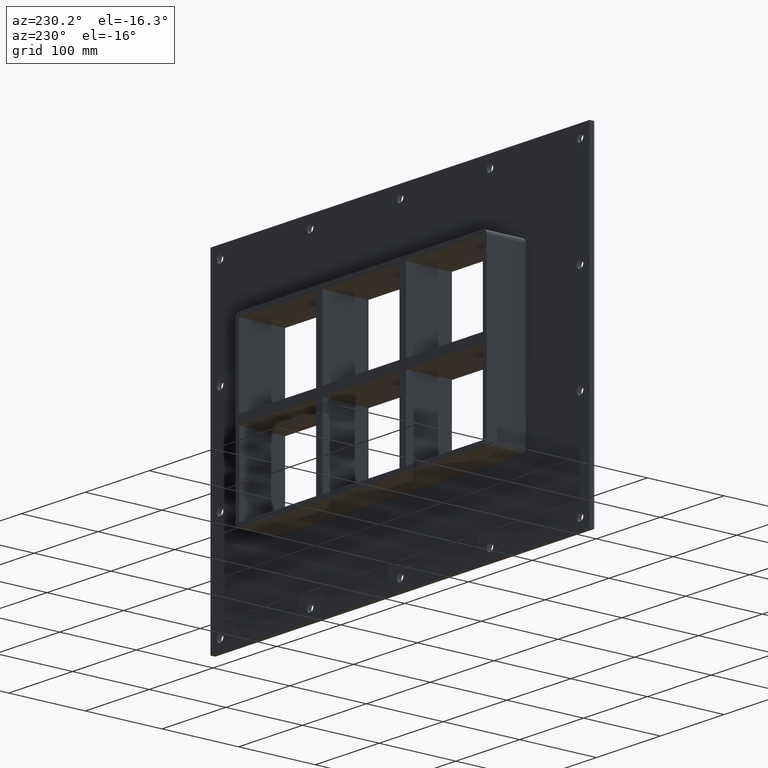
[diagram: clean part render]
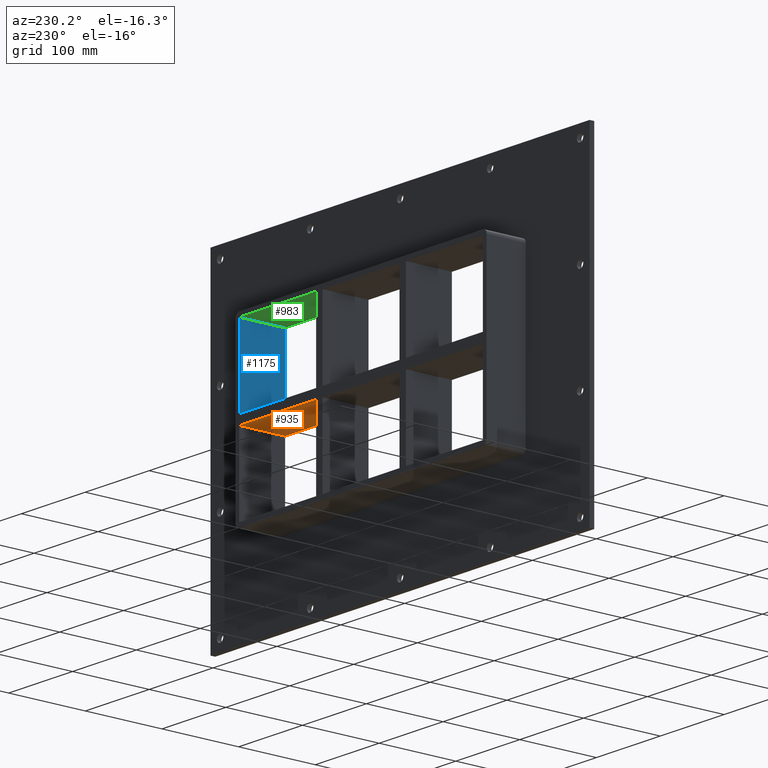
[diagram: same view with three faces highlighted in distinct colors, each labeled with its STEP entity id]
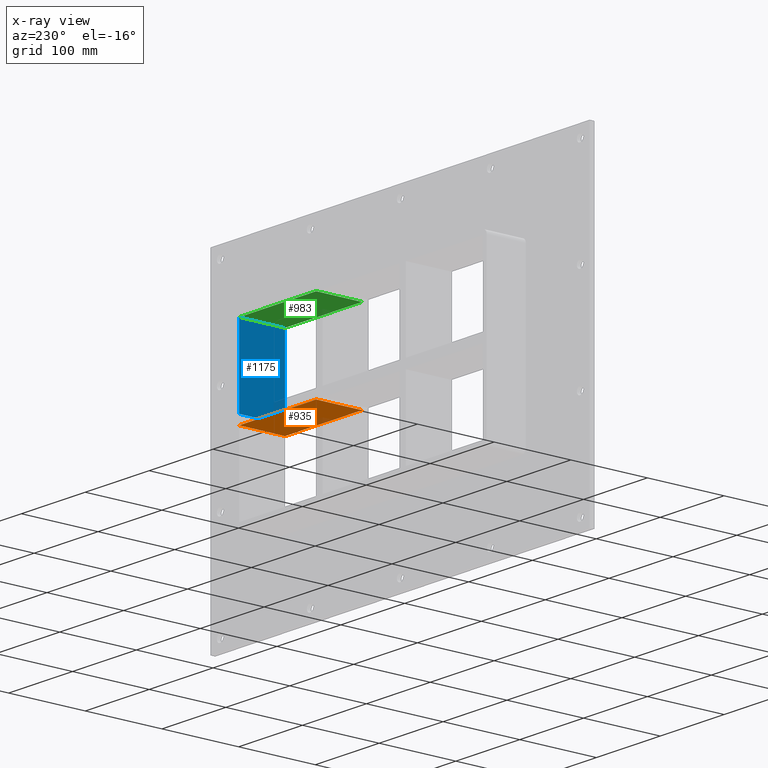
[diagram: x-ray of the same camera — body ghosted, the three highlighted faces saturated]
A machine part, auxiliary view with three faces highlighted in distinct colors.
The next image is the same camera in x-ray (body ghosted, the three faces saturated) — at least one of them is partly hidden behind the body in this view.
Their STEP definitions:

[orange] entity #935 — the highlighted planar face has unit normal (0, 0, -1).
#585=CARTESIAN_POINT('',(70.250000000003638,-3.0,-6.000000000009322));
#586=VERTEX_POINT('',#585);
#587=CARTESIAN_POINT('',(70.250000000003638,57.0,-6.000000000009322));
#588=VERTEX_POINT('',#587);
#589=CARTESIAN_POINT('',(70.250000000003638,-3.0,-6.000000000009322));
#590=DIRECTION('',(0.0,1.0,0.0));
#591=VECTOR('',#590,60.0);
#592=LINE('',#589,#591);
#593=EDGE_CURVE('',#586,#588,#592,.T.);
#826=CARTESIAN_POINT('',(190.74999999999818,-3.0,-6.000000000009322));
#827=VERTEX_POINT('',#826);
#828=CARTESIAN_POINT('',(190.74999999999818,-3.0,-6.000000000009322));
#829=DIRECTION('',(-1.0,0.0,0.0));
#830=VECTOR('',#829,120.49999999999454);
#831=LINE('',#828,#830);
#832=EDGE_CURVE('',#827,#586,#831,.T.);
#912=CARTESIAN_POINT('',(190.74999999999818,-3.0,-6.000000000009322));
#913=DIRECTION('',(0.0,0.0,-1.0));
#914=DIRECTION('',(-1.0,0.0,0.0));
#915=AXIS2_PLACEMENT_3D('',#912,#913,#914);
#916=PLANE('',#915);
#917=ORIENTED_EDGE('',*,*,#593,.T.);
#918=CARTESIAN_POINT('',(190.74999999999818,57.0,-6.000000000009322));
#919=VERTEX_POINT('',#918);
#920=CARTESIAN_POINT('',(190.74999999999818,57.0,-6.000000000009322));
#921=DIRECTION('',(-1.0,0.0,0.0));
#922=VECTOR('',#921,120.49999999999454);
#923=LINE('',#920,#922);
#924=EDGE_CURVE('',#919,#588,#923,.T.);
#925=ORIENTED_EDGE('',*,*,#924,.F.);
#926=CARTESIAN_POINT('',(190.75000000000011,-3.0,-6.000000000009322));
#927=DIRECTION('',(0.0,1.0,0.0));
#928=VECTOR('',#927,60.000000000000007);
#929=LINE('',#926,#928);
#930=EDGE_CURVE('',#827,#919,#929,.T.);
#931=ORIENTED_EDGE('',*,*,#930,.F.);
#932=ORIENTED_EDGE('',*,*,#832,.T.);
#933=EDGE_LOOP('',(#917,#925,#931,#932));
#934=FACE_OUTER_BOUND('',#933,.T.);
#935=ADVANCED_FACE('',(#934),#916,.T.);

[blue] entity #1175 — the highlighted planar face has unit normal (1, 0, 0).
#801=CARTESIAN_POINT('',(190.75000000000011,-3.0,107.0));
#802=VERTEX_POINT('',#801);
#809=CARTESIAN_POINT('',(190.74999999999991,-3.0,5.999999999999943));
#810=VERTEX_POINT('',#809);
#811=CARTESIAN_POINT('',(190.75000000000011,-3.0,107.0));
#812=DIRECTION('',(0.0,0.0,-1.0));
#813=VECTOR('',#812,101.00000000000006);
#814=LINE('',#811,#813);
#815=EDGE_CURVE('',#802,#810,#814,.T.);
#943=CARTESIAN_POINT('',(190.74999999999989,57.0,5.999999999999943));
#944=VERTEX_POINT('',#943);
#945=CARTESIAN_POINT('',(190.75000000000011,57.000000000000007,5.999999999999943));
#946=DIRECTION('',(0.0,-1.0,0.0));
#947=VECTOR('',#946,60.000000000000007);
#948=LINE('',#945,#947);
#949=EDGE_CURVE('',#944,#810,#948,.T.);
#966=CARTESIAN_POINT('',(190.75000000000011,57.0,107.0));
#967=VERTEX_POINT('',#966);
#974=CARTESIAN_POINT('',(190.75000000000011,-3.0,107.0));
#975=DIRECTION('',(0.0,1.0,0.0));
#976=VECTOR('',#975,60.0);
#977=LINE('',#974,#976);
#978=EDGE_CURVE('',#802,#967,#977,.T.);
#1159=CARTESIAN_POINT('',(190.75000000000011,0.0,107.0));
#1160=DIRECTION('',(1.0,0.0,0.0));
#1161=DIRECTION('',(0.0,0.0,-1.0));
#1162=AXIS2_PLACEMENT_3D('',#1159,#1160,#1161);
#1163=PLANE('',#1162);
#1164=ORIENTED_EDGE('',*,*,#949,.T.);
#1165=ORIENTED_EDGE('',*,*,#815,.F.);
#1166=ORIENTED_EDGE('',*,*,#978,.T.);
#1167=CARTESIAN_POINT('',(190.75000000000011,57.0,5.999999999999943));
#1168=DIRECTION('',(0.0,0.0,1.0));
#1169=VECTOR('',#1168,101.00000000000006);
#1170=LINE('',#1167,#1169);
#1171=EDGE_CURVE('',#944,#967,#1170,.T.);
#1172=ORIENTED_EDGE('',*,*,#1171,.F.);
#1173=EDGE_LOOP('',(#1164,#1165,#1166,#1172));
#1174=FACE_OUTER_BOUND('',#1173,.T.);
#1175=ADVANCED_FACE('',(#1174),#1163,.F.);

[green] entity #983 — the highlighted planar face has unit normal (0, 0, 1).
#555=CARTESIAN_POINT('',(70.250000000003638,57.0,107.0));
#556=VERTEX_POINT('',#555);
#563=CARTESIAN_POINT('',(70.250000000003638,-3.0,107.0));
#564=VERTEX_POINT('',#563);
#565=CARTESIAN_POINT('',(70.250000000003638,-3.0,107.0));
#566=DIRECTION('',(0.0,1.0,0.0));
#567=VECTOR('',#566,60.000000000000007);
#568=LINE('',#565,#567);
#569=EDGE_CURVE('',#564,#556,#568,.T.);
#801=CARTESIAN_POINT('',(190.75000000000011,-3.0,107.0));
#802=VERTEX_POINT('',#801);
#803=CARTESIAN_POINT('',(70.250000000003652,-3.0,107.0));
#804=DIRECTION('',(1.0,0.0,0.0));
#805=VECTOR('',#804,120.49999999999646);
#806=LINE('',#803,#805);
#807=EDGE_CURVE('',#564,#802,#806,.T.);
#960=CARTESIAN_POINT('',(-190.75000000000003,0.0,107.0));
#961=DIRECTION('',(0.0,0.0,1.0));
#962=DIRECTION('',(1.0,0.0,0.0));
#963=AXIS2_PLACEMENT_3D('',#960,#961,#962);
#964=PLANE('',#963);
#965=ORIENTED_EDGE('',*,*,#569,.T.);
#966=CARTESIAN_POINT('',(190.75000000000011,57.0,107.0));
#967=VERTEX_POINT('',#966);
#968=CARTESIAN_POINT('',(190.75000000000011,57.0,107.0));
#969=DIRECTION('',(-1.0,0.0,0.0));
#970=VECTOR('',#969,120.49999999999646);
#971=LINE('',#968,#970);
#972=EDGE_CURVE('',#967,#556,#971,.T.);
#973=ORIENTED_EDGE('',*,*,#972,.F.);
#974=CARTESIAN_POINT('',(190.75000000000011,-3.0,107.0));
#975=DIRECTION('',(0.0,1.0,0.0));
#976=VECTOR('',#975,60.0);
#977=LINE('',#974,#976);
#978=EDGE_CURVE('',#802,#967,#977,.T.);
#979=ORIENTED_EDGE('',*,*,#978,.F.);
#980=ORIENTED_EDGE('',*,*,#807,.F.);
#981=EDGE_LOOP('',(#965,#973,#979,#980));
#982=FACE_OUTER_BOUND('',#981,.T.);
#983=ADVANCED_FACE('',(#982),#964,.F.);